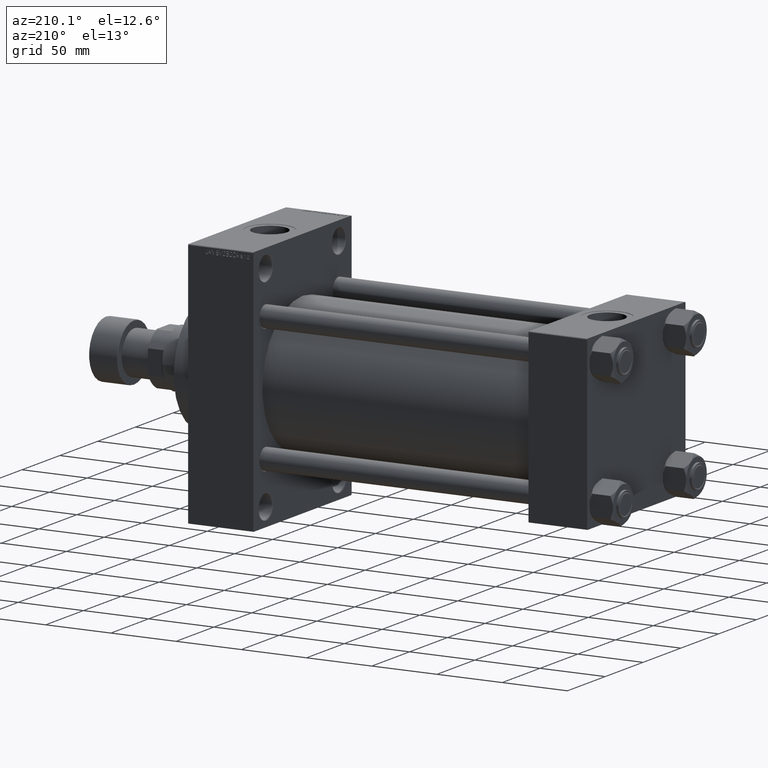
[diagram: clean part render]
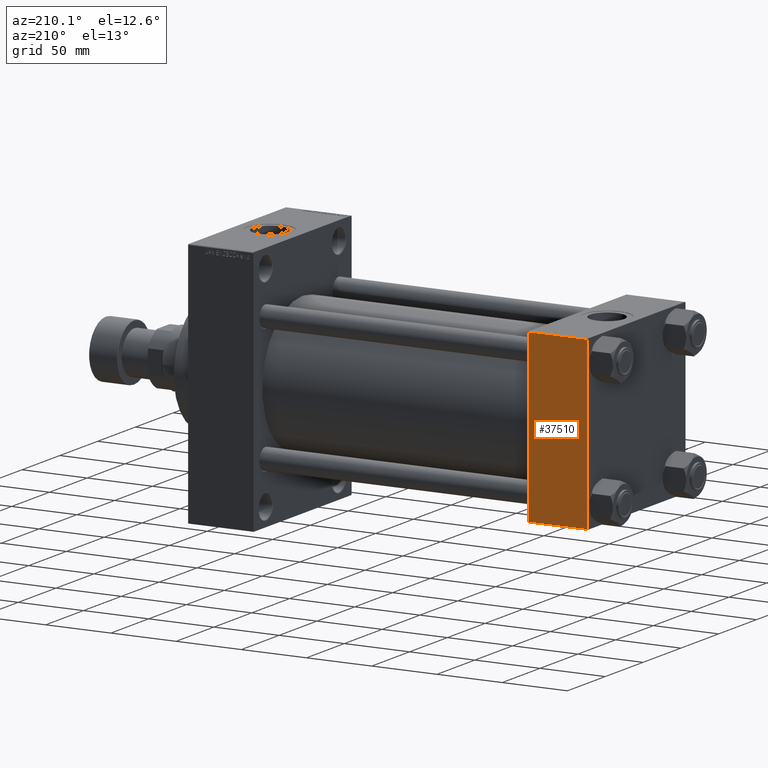
[diagram: same view with one face highlighted and labeled with its STEP entity id]
A machine part, auxiliary view. The second image highlights one B-rep face of the part: STEP entity #37510.
In plain terms, the highlighted planar face has unit normal (0, 1, 0).
Its self-contained STEP definition (entity closure, byte-faithful):
#207 = DIRECTION ( 'NONE',  ( -0.000000000000000000, 1.000000000000000000, 0.000000000000000000 ) ) ;
#1910 = CARTESIAN_POINT ( 'NONE',  ( 0.000000000000000000, 65.00000000000000000, -64.49999999999995737 ) ) ;
#3391 = PLANE ( 'NONE',  #35913 ) ;
#5179 = ORIENTED_EDGE ( 'NONE', *, *, #25395, .T. ) ;
#9386 = VECTOR ( 'NONE', #24961, 1000.000000000000000 ) ;
#10242 = CARTESIAN_POINT ( 'NONE',  ( 45.00000000000000000, 65.00000000000000000, 64.49999999999998579 ) ) ;
#10806 = VECTOR ( 'NONE', #46125, 1000.000000000000000 ) ;
#11706 = ORIENTED_EDGE ( 'NONE', *, *, #14934, .F. ) ;
#13326 = EDGE_CURVE ( 'NONE', #32124, #24221, #27998, .T. ) ;
#14343 = DIRECTION ( 'NONE',  ( 0.000000000000000000, -0.000000000000000000, 1.000000000000000000 ) ) ;
#14934 = EDGE_CURVE ( 'NONE', #42110, #24221, #31777, .T. ) ;
#18981 = VECTOR ( 'NONE', #39877, 1000.000000000000000 ) ;
#20587 = CARTESIAN_POINT ( 'NONE',  ( 0.000000000000000000, 65.00000000000000000, 65.00000000000001421 ) ) ;
#20813 = CARTESIAN_POINT ( 'NONE',  ( 0.000000000000000000, 65.00000000000000000, 64.49999999999998579 ) ) ;
#21413 = DIRECTION ( 'NONE',  ( -1.000000000000000000, 0.000000000000000000, 0.000000000000000000 ) ) ;
#24221 = VERTEX_POINT ( 'NONE', #1910 ) ;
#24961 = DIRECTION ( 'NONE',  ( 0.000000000000000000, 0.000000000000000000, -1.000000000000000000 ) ) ;
#25395 = EDGE_CURVE ( 'NONE', #36814, #32124, #31310, .T. ) ;
#27998 = LINE ( 'NONE', #46709, #31816 ) ;
#31310 = LINE ( 'NONE', #31542, #10806 ) ;
#31542 = CARTESIAN_POINT ( 'NONE',  ( 45.00000000000000000, 65.00000000000000000, 65.00000000000001421 ) ) ;
#31777 = LINE ( 'NONE', #20587, #9386 ) ;
#31816 = VECTOR ( 'NONE', #21413, 1000.000000000000000 ) ;
#32124 = VERTEX_POINT ( 'NONE', #40244 ) ;
#32821 = FACE_OUTER_BOUND ( 'NONE', #37008, .T. ) ;
#35335 = ORIENTED_EDGE ( 'NONE', *, *, #41609, .T. ) ;
#35913 = AXIS2_PLACEMENT_3D ( 'NONE', #40343, #207, #14343 ) ;
#36814 = VERTEX_POINT ( 'NONE', #41752 ) ;
#37008 = EDGE_LOOP ( 'NONE', ( #5179, #41421, #11706, #35335 ) ) ;
#37510 = ADVANCED_FACE ( 'NONE', ( #32821 ), #3391, .T. ) ;
#39877 = DIRECTION ( 'NONE',  ( 1.000000000000000000, 0.000000000000000000, 0.000000000000000000 ) ) ;
#40244 = CARTESIAN_POINT ( 'NONE',  ( 45.00000000000000000, 65.00000000000000000, -64.49999999999995737 ) ) ;
#40343 = CARTESIAN_POINT ( 'NONE',  ( 45.00000000000000000, 65.00000000000000000, 65.00000000000001421 ) ) ;
#40363 = LINE ( 'NONE', #10242, #18981 ) ;
#41421 = ORIENTED_EDGE ( 'NONE', *, *, #13326, .T. ) ;
#41609 = EDGE_CURVE ( 'NONE', #42110, #36814, #40363, .T. ) ;
#41752 = CARTESIAN_POINT ( 'NONE',  ( 45.00000000000000000, 65.00000000000000000, 64.49999999999998579 ) ) ;
#42110 = VERTEX_POINT ( 'NONE', #20813 ) ;
#46125 = DIRECTION ( 'NONE',  ( 0.000000000000000000, 0.000000000000000000, -1.000000000000000000 ) ) ;
#46709 = CARTESIAN_POINT ( 'NONE',  ( 45.00000000000000000, 65.00000000000000000, -64.49999999999995737 ) ) ;